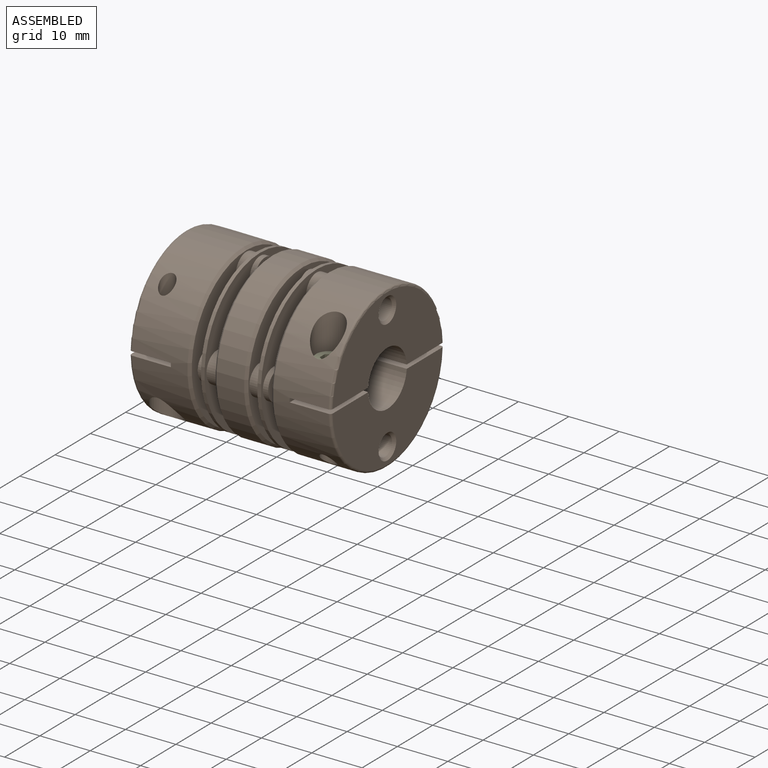
[diagram: assembled view]
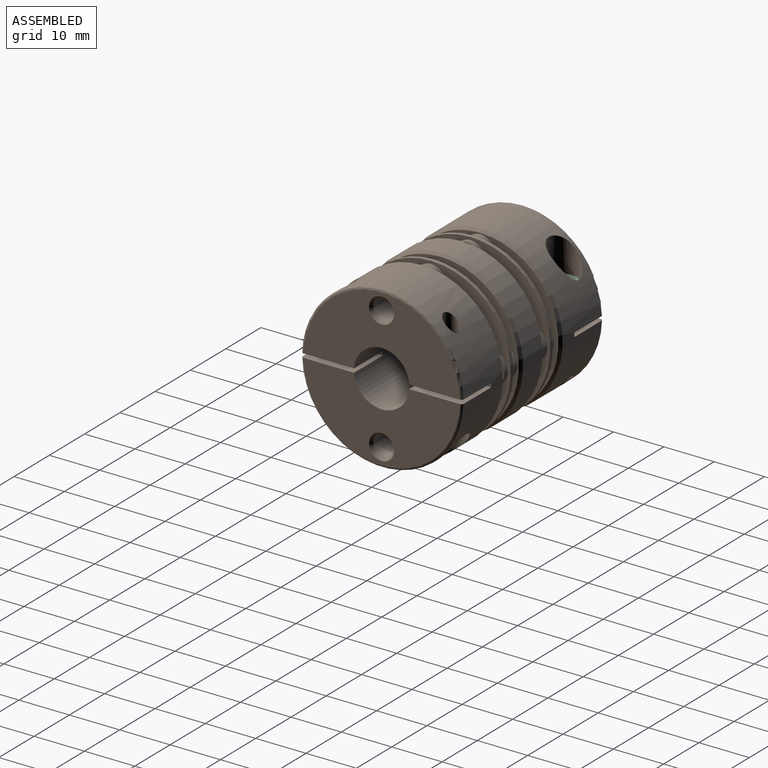
[diagram: assembled view, second angle]
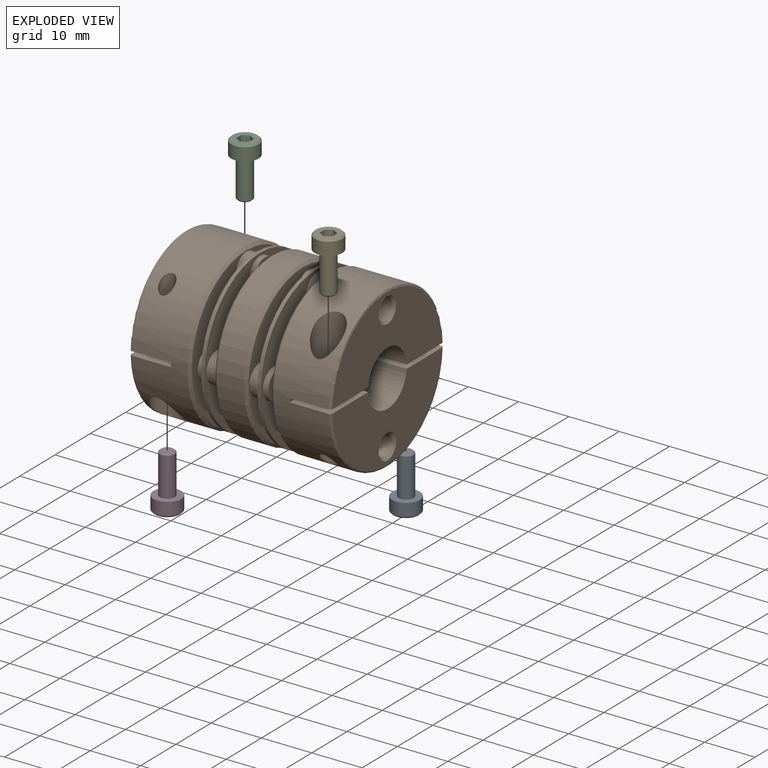
[diagram: exploded view]
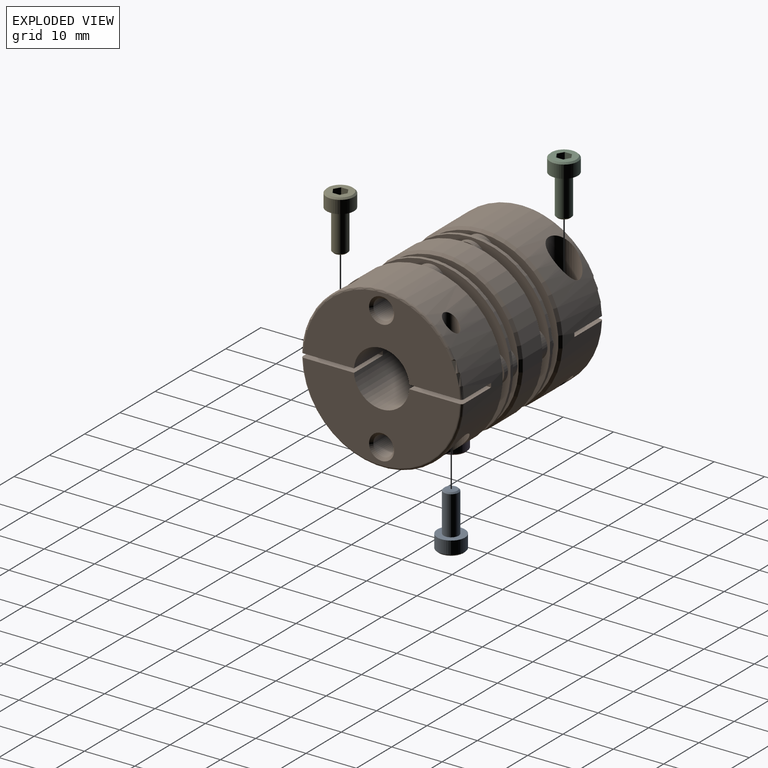
[diagram: exploded view, second angle]
ASSEMBLY  parts=5 mates=4
PART A: 20 faces, bbox 10.9x5.5x5.5 mm
  f0: plane 1.08x0.63mm, normal (-1,0,0), area 0.1mm2, adj f13,f14,f19
  f1: plane 1.25x0.36mm, normal (-1,0,0), area 0.1mm2, adj f13,f18,f19
  f2: plane 1.08x0.63mm, normal (-1,0,0), area 0.1mm2, adj f17,f18,f19
  f3: plane 1.08x0.63mm, normal (-1,0,0), area 0.1mm2, adj f16,f17,f19
  f4: plane 1.25x0.36mm, normal (-1,0,0), area 0.1mm2, adj f15,f16,f19
  f5: plane 1.08x0.63mm, normal (-1,0,0), area 0.1mm2, adj f14,f15,f19
  f6: plane 4.9x4.9mm, normal (-1,0,0), area 13.4mm2, adj f7,f13,f14,f15,f16,f17,f18
  f7: cone r=2.75mm half-angle=45deg, axis (1,0,0), area 6.9mm2, adj f6,f8
  f8: cylinder r=2.75mm len=5.5mm, axis (-1,0,0), area 44.2mm2, adj f7,f9
  f9: plane 5.5x5.5mm, normal (1,0,0), area 16.7mm2, adj f8,f10
  f10: cylinder r=1.5mm len=7.73mm, axis (-1,0,0), area 72.8mm2, adj f9,f11
  f11: cone r=1.23mm half-angle=45deg, axis (-1,0,0), area 3.3mm2, adj f10,f12
  f12: plane 2.46x2.46mm, normal (1,0,0), area 4.7mm2, adj f11
  f13: plane 1.3x1.25mm, normal (0,-0.87,-0.5), area 1.9mm2, adj f0,f1,f6,f14,f18
  f14: plane 1.44x1.3mm, normal (0,0,-1), area 1.9mm2, adj f0,f5,f6,f13,f15
  f15: plane 1.3x1.25mm, normal (0,0.87,-0.5), area 1.9mm2, adj f4,f5,f6,f14,f16
  f16: plane 1.3x1.25mm, normal (0,0.87,0.5), area 1.9mm2, adj f3,f4,f6,f15,f17
  f17: plane 1.44x1.3mm, normal (0,0,1), area 1.9mm2, adj f2,f3,f6,f16,f18
  f18: plane 1.3x1.25mm, normal (0,-0.87,0.5), area 1.9mm2, adj f1,f2,f6,f13,f17
  f19: cone r=0mm half-angle=60deg, axis (-1,0,0), area 5.7mm2, adj f0,f1,f2,f3,f4,f5
PART B: 106 faces, bbox 40x34.6x34.7 mm
  f0: cylinder r=16mm len=32mm, axis (1,0,0), area 990.9mm2, adj f1,f2,f4,f9,f18,f19,f27,f43
  f1: cylinder r=1.5mm len=5.62mm, axis (0,0,1), area 48.2mm2, adj f0,f51
  f2: cylinder r=3mm len=7.62mm, axis (0,0,-1), area 121.7mm2, adj f0,f49
  f3: cylinder r=1.5mm len=3.6mm, axis (0,0,-1), area 33.9mm2, adj f18,f49
  f4: cone r=16mm half-angle=45deg, axis (1,0,0), area 70mm2, adj f0,f6
  f5: plane 6x6mm, normal (-1,0,0), area 28.3mm2, adj f77
  f6: plane 31x31mm, normal (-1,0,0), area 603.2mm2, adj f4,f76,f78,f80
  f7: plane 6x6mm, normal (-1,0,0), area 28.3mm2, adj f79
  f8: cylinder r=1.5mm len=3.6mm, axis (0,0,1), area 33.9mm2, adj f50,f104
  f9: cylinder r=3mm len=7.62mm, axis (0,0,1), area 121.8mm2, adj f0,f50
  f10: plane 30.99x15.1mm, normal (-1,0,0), area 310.1mm2, adj f12,f17,f20,f23,f68
  f11: plane 6x6mm, normal (0,0,-1), area 21.2mm2, adj f15,f16
  f12: cylinder r=5mm len=12mm, axis (1,0,0), area 363.9mm2, adj f10,f20,f21,f22,f23,f24,f29,f41
  f13: plane 4x4mm, normal (-1,0,0), area 12.6mm2, adj f69
  f14: cylinder r=3mm len=7.62mm, axis (0,0,1), area 121.7mm2, adj f48,f103
  f15: cylinder r=1.5mm len=3.6mm, axis (0,0,-1), area 33.9mm2, adj f11,f23
  f16: cylinder r=3mm len=7.62mm, axis (0,0,-1), area 121.8mm2, adj f11,f103
  f17: torus R=15.5mm, axis (-1,0,0), area 38.4mm2, adj f10,f20,f23,f103
  f18: plane 10.53x8.22mm, normal (0,0,1), area 79.1mm2, adj f0,f3,f25,f27,f44,f76
  f19: plane 10.52x8.21mm, normal (0,0,-1), area 79mm2, adj f0,f26,f44,f57,f75,f76
  f20: plane 11.02x8.21mm, normal (0,0,1), area 83.2mm2, adj f10,f12,f17,f41,f58,f103
  f21: plane 11.02x8.21mm, normal (0,0,-1), area 83.2mm2, adj f12,f24,f41,f62,f102,f103
  f22: plane 11.02x8.21mm, normal (0,0,-1), area 83.2mm2, adj f12,f24,f42,f63,f102,f103
  f23: plane 11.02x8.21mm, normal (0,0,1), area 83.2mm2, adj f10,f12,f15,f17,f42,f103
  f24: plane 30.99x15.1mm, normal (-1,0,0), area 310.1mm2, adj f12,f21,f22,f70,f102
  f25: plane 30.99x15.1mm, normal (1,0,0), area 302.2mm2, adj f18,f27,f71,f76,f105
  f26: plane 30.99x15.1mm, normal (1,0,0), area 302.2mm2, adj f19,f73,f75,f76,f104
  f27: torus R=15.5mm, axis (-1,0,0), area 38.4mm2, adj f0,f18,f25,f105
  f28: plane 31x31mm, normal (1,0,0), area 497.2mm2, adj f87,f88,f100,f101
  f29: plane 31x31mm, normal (1,0,0), area 619.7mm2, adj f12,f97,f98,f99
  f30: plane 31.6x31.6mm, normal (-1,0,0), area 470.1mm2, adj f89,f91,f95,f96,f98,f99
  f31: plane 31.6x31.6mm, normal (1,0,0), area 470.1mm2, adj f90,f92,f93,f94,f95,f96
  f32: plane 6x6mm, normal (1,0,0), area 28.3mm2, adj f94
  f33: plane 6x6mm, normal (1,0,0), area 28.3mm2, adj f93
  f34: plane 6x6mm, normal (-1,0,0), area 28.3mm2, adj f91
  f35: plane 6x6mm, normal (-1,0,0), area 28.3mm2, adj f89
  f36: plane 31x31mm, normal (-1,0,0), area 497.2mm2, adj f85,f88,f90,f92
  f37: plane 31.6x31.6mm, normal (-1,0,0), area 470.1mm2, adj f77,f79,f83,f84,f100,f101
  f38: plane 31.6x31.6mm, normal (1,0,0), area 470.1mm2, adj f78,f80,f81,f82,f83,f84
  f39: plane 6x6mm, normal (1,0,0), area 28.3mm2, adj f82
  f40: plane 6x6mm, normal (1,0,0), area 28.3mm2, adj f81
  f41: plane 11.02x0.8mm, normal (-1,0,0), area 8.8mm2, adj f12,f20,f21,f103
  f42: plane 11.02x0.8mm, normal (-1,0,0), area 8.8mm2, adj f12,f22,f23,f103
  f43: plane 10.51x0.8mm, normal (1,0,0), area 8.4mm2, adj f0,f76,f104,f105
  f44: plane 10.51x0.8mm, normal (1,0,0), area 8.4mm2, adj f0,f18,f19,f76
  f45: plane 4x4mm, normal (1,0,0), area 12.6mm2, adj f74
  f46: plane 4x4mm, normal (1,0,0), area 12.6mm2, adj f72
  f47: plane 4x4mm, normal (-1,0,0), area 12.6mm2, adj f67
  f48: plane 6x6mm, normal (0,0,1), area 21.2mm2, adj f14,f62
  f49: plane 6x6mm, normal (0,0,-1), area 21.2mm2, adj f2,f3
  f50: plane 6x6mm, normal (0,0,1), area 21.2mm2, adj f8,f9
  f51: cone r=1.23mm half-angle=45deg, axis (0,0,-1), area 3.3mm2, adj f1,f52
  f52: cylinder r=1.23mm len=5.06mm, axis (0,0,1), area 39.1mm2, adj f51,f53
  f53: cone r=1.5mm half-angle=45deg, axis (0,0,1), area 3.3mm2, adj f52,f105
  f54: cylinder r=1.5mm len=5.62mm, axis (0,0,-1), area 48.2mm2, adj f0,f55
  f55: cone r=1.23mm half-angle=45deg, axis (0,0,1), area 3.3mm2, adj f54,f56
  f56: cylinder r=1.23mm len=5.06mm, axis (0,0,-1), area 39.1mm2, adj f55,f57
  f57: cone r=1.5mm half-angle=45deg, axis (0,0,-1), area 3.3mm2, adj f19,f56
  f58: cone r=1.5mm half-angle=45deg, axis (0,0,1), area 3.3mm2, adj f20,f59
  f59: cylinder r=1.23mm len=5.06mm, axis (0,0,1), area 39.1mm2, adj f58,f60
  f60: cone r=1.23mm half-angle=45deg, axis (0,0,-1), area 3.3mm2, adj f59,f61
  f61: cylinder r=1.5mm len=5.62mm, axis (0,0,1), area 48.2mm2, adj f60,f103
  f62: cylinder r=1.5mm len=3.6mm, axis (0,0,1), area 33.9mm2, adj f21,f48
  f63: cone r=1.5mm half-angle=45deg, axis (0,0,-1), area 3.3mm2, adj f22,f64
  f64: cylinder r=1.23mm len=5.06mm, axis (0,0,-1), area 39.1mm2, adj f63,f65
  f65: cone r=1.23mm half-angle=45deg, axis (0,0,1), area 3.3mm2, adj f64,f66
  f66: cylinder r=1.5mm len=5.62mm, axis (0,0,-1), area 48.2mm2, adj f65,f103
  f67: cylinder r=2mm len=5.5mm, axis (1,0,0), area 69.1mm2, adj f47,f68
  f68: cone r=2mm half-angle=45deg, axis (-1,0,0), area 10mm2, adj f10,f67
  f69: cylinder r=2mm len=5.5mm, axis (1,0,0), area 69.1mm2, adj f13,f70
  f70: cone r=2mm half-angle=45deg, axis (-1,0,0), area 10mm2, adj f24,f69
  f71: cone r=2.5mm half-angle=45deg, axis (1,0,0), area 10mm2, adj f25,f72
  f72: cylinder r=2mm len=5.5mm, axis (1,0,0), area 69.1mm2, adj f46,f71
  f73: cone r=2.5mm half-angle=45deg, axis (1,0,0), area 10mm2, adj f26,f74
  f74: cylinder r=2mm len=5.5mm, axis (1,0,0), area 69.1mm2, adj f45,f73
  f75: torus R=15.5mm, axis (-1,0,0), area 38.4mm2, adj f0,f19,f26,f104
  f76: cylinder r=5.5mm len=12mm, axis (1,0,0), area 401.6mm2, adj f6,f18,f19,f25,f26,f43,f44,f104
  f77: cylinder r=3mm len=6mm, axis (-1,0,0), area 18.8mm2, adj f5,f37
  f78: cylinder r=3mm len=6mm, axis (-1,0,0), area 38.6mm2, adj f6,f38
  f79: cylinder r=3mm len=6mm, axis (-1,0,0), area 18.8mm2, adj f7,f37
  f80: cylinder r=3mm len=6mm, axis (-1,0,0), area 38.6mm2, adj f6,f38
  f81: cylinder r=3mm len=6mm, axis (1,0,0), area 19.8mm2, adj f38,f40
  f82: cylinder r=3mm len=6mm, axis (1,0,0), area 19.8mm2, adj f38,f39
  f83: cylinder r=8mm len=16mm, axis (1,0,0), area 35.2mm2, adj f37,f38
  f84: cylinder r=15.8mm len=31.6mm, axis (1,0,0), area 69.5mm2, adj f37,f38
  f85: cone r=16mm half-angle=45deg, axis (1,0,0), area 70mm2, adj f36,f86
  f86: cylinder r=16mm len=32mm, axis (1,0,0), area 552.9mm2, adj f85,f87
  f87: cone r=15.5mm half-angle=45deg, axis (-1,0,0), area 70mm2, adj f28,f86
  f88: cylinder r=8mm len=16mm, axis (1,0,0), area 326.7mm2, adj f28,f36
  f89: cylinder r=3mm len=6mm, axis (-1,0,0), area 19.8mm2, adj f30,f35
  f90: cylinder r=3mm len=6mm, axis (-1,0,0), area 37.7mm2, adj f31,f36
  f91: cylinder r=3mm len=6mm, axis (-1,0,0), area 19.8mm2, adj f30,f34
  f92: cylinder r=3mm len=6mm, axis (-1,0,0), area 37.7mm2, adj f31,f36
  f93: cylinder r=3mm len=6mm, axis (1,0,0), area 18.8mm2, adj f31,f33
  f94: cylinder r=3mm len=6mm, axis (1,0,0), area 18.8mm2, adj f31,f32
  f95: cylinder r=8mm len=16mm, axis (1,0,0), area 35.2mm2, adj f30,f31
  f96: cylinder r=15.8mm len=31.6mm, axis (1,0,0), area 69.5mm2, adj f30,f31
  f97: cone r=15.5mm half-angle=45deg, axis (-1,0,0), area 70mm2, adj f29,f103
  f98: cylinder r=3mm len=6mm, axis (1,0,0), area 38.6mm2, adj f29,f30
  f99: cylinder r=3mm len=6mm, axis (1,0,0), area 38.6mm2, adj f29,f30
  f100: cylinder r=3mm len=6mm, axis (1,0,0), area 37.7mm2, adj f28,f37
  f101: cylinder r=3mm len=6mm, axis (1,0,0), area 37.7mm2, adj f28,f37
  f102: torus R=15.5mm, axis (-1,0,0), area 38.4mm2, adj f21,f22,f24,f103
  f103: cylinder r=16mm len=32mm, axis (1,0,0), area 995.8mm2, adj f14,f16,f17,f20,f21,f22,f23,f41
  f104: plane 10.53x8.22mm, normal (0,0,-1), area 79.1mm2, adj f0,f8,f26,f43,f75,f76
  f105: plane 10.52x8.21mm, normal (0,0,1), area 79.1mm2, adj f0,f25,f27,f43,f53,f76
PART C: same geometry as A
PART D: same geometry as A
PART E: same geometry as A
PLACE A rot(axis=(0,-1,0),90deg) t=(36,11,-4)mm
PLACE B at identity
PLACE C rot(axis=(0.71,0,-0.71),180deg) t=(4,11,4)mm
PLACE D rot(axis=(0,-1,0),90deg) t=(4,-11,-4)mm
PLACE E rot(axis=(0.71,0,-0.71),180deg) t=(36,-11,4)mm
MATE revolute A.f7 <-> B.f2  axis (0,0,1) through (36,11,-4)mm
MATE revolute C.f7 <-> B.f14  axis (0,0,-1) through (4,11,4)mm
MATE revolute E.f7 <-> B.f1  axis (0,0,1) through (36,-11,4)mm
MATE revolute D.f7 <-> B.f15  axis (0,0,1) through (4,-11,-4)mm
